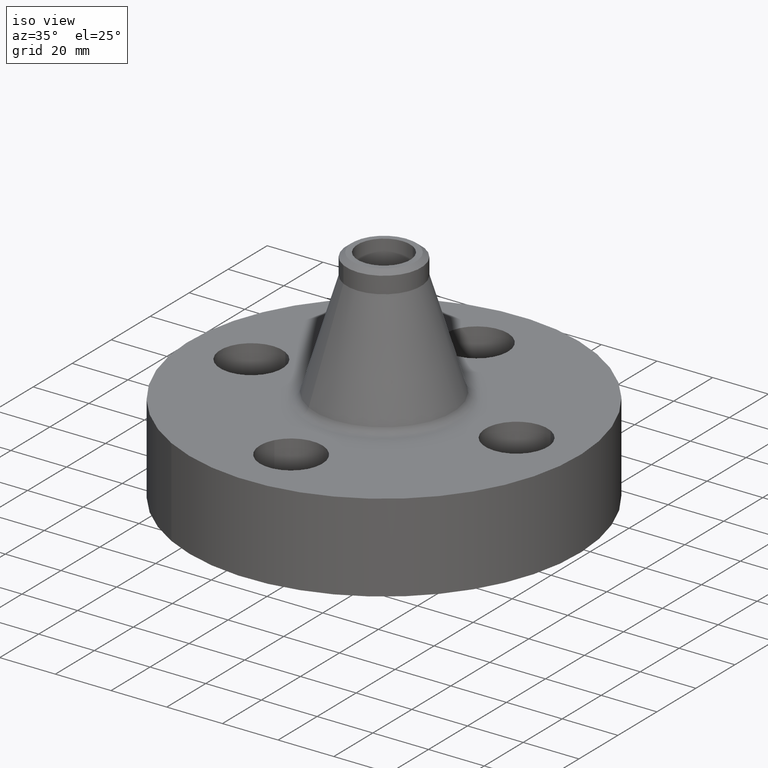
[diagram: clean part render]
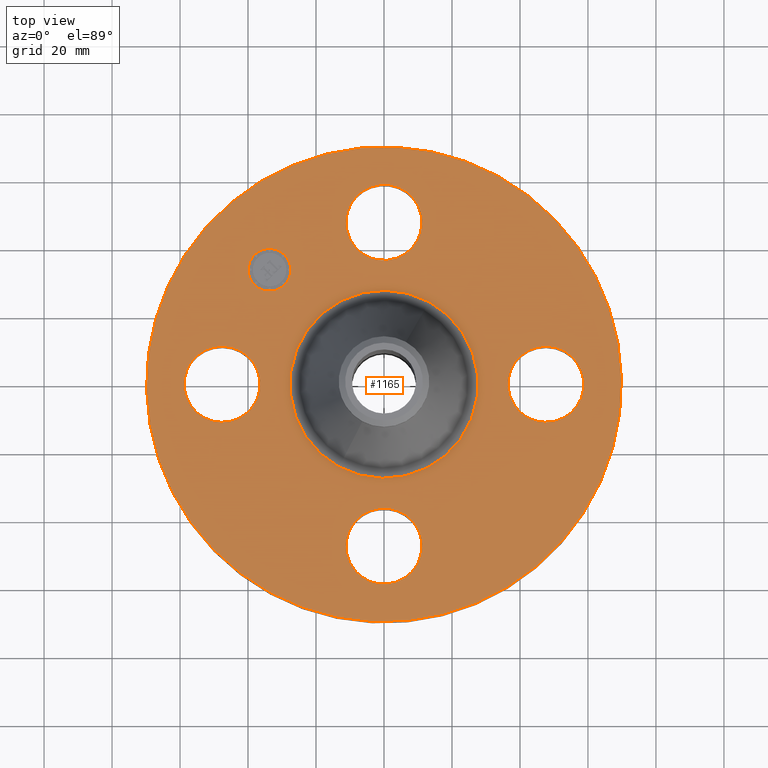
[diagram: tour spotlight — one face highlighted and labeled with its STEP entity id]
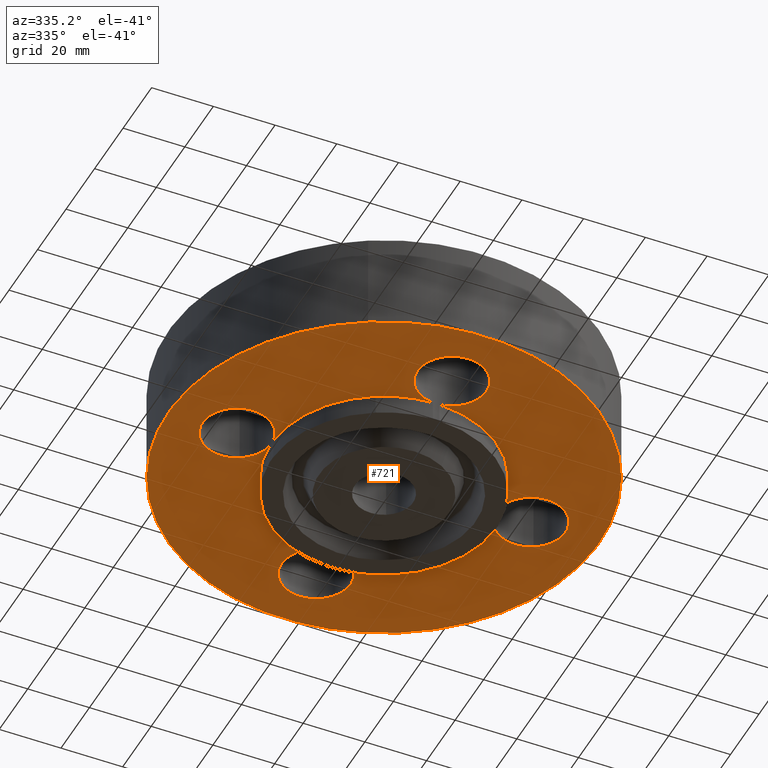
[diagram: tour spotlight — one face highlighted and labeled with its STEP entity id]
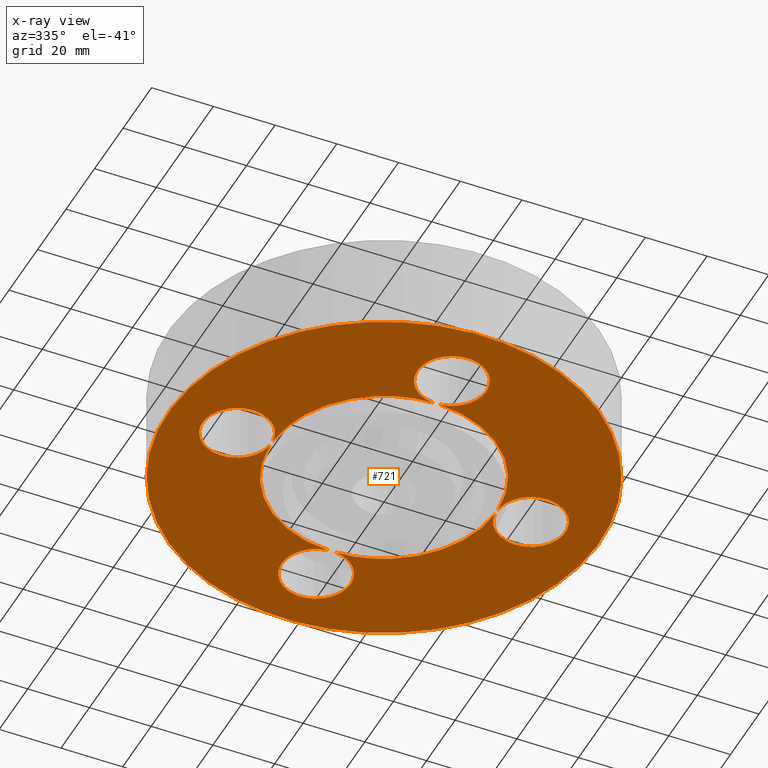
[diagram: x-ray of the same camera — body ghosted, this tour face saturated]
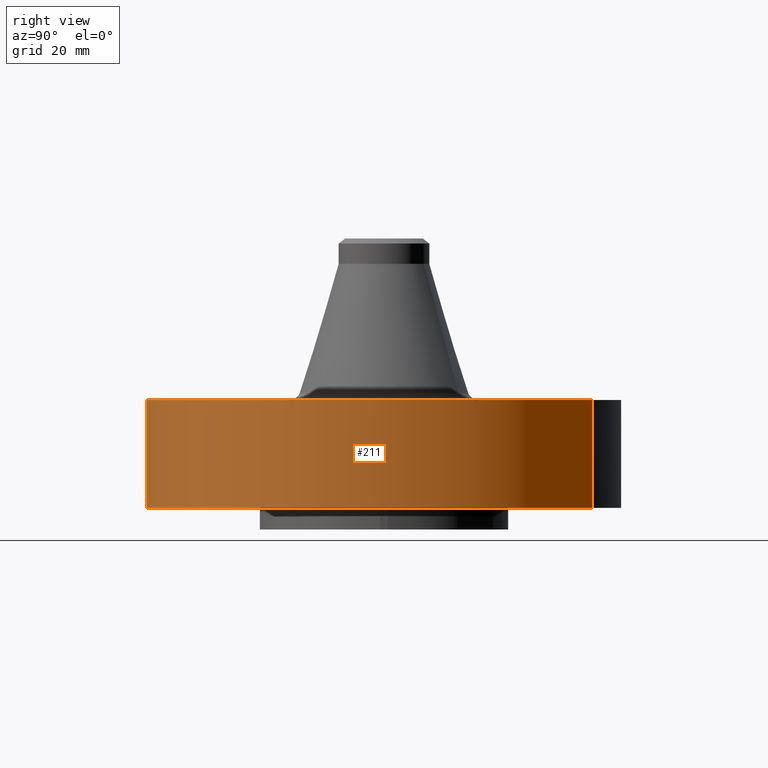
[diagram: tour spotlight — one face highlighted and labeled with its STEP entity id]
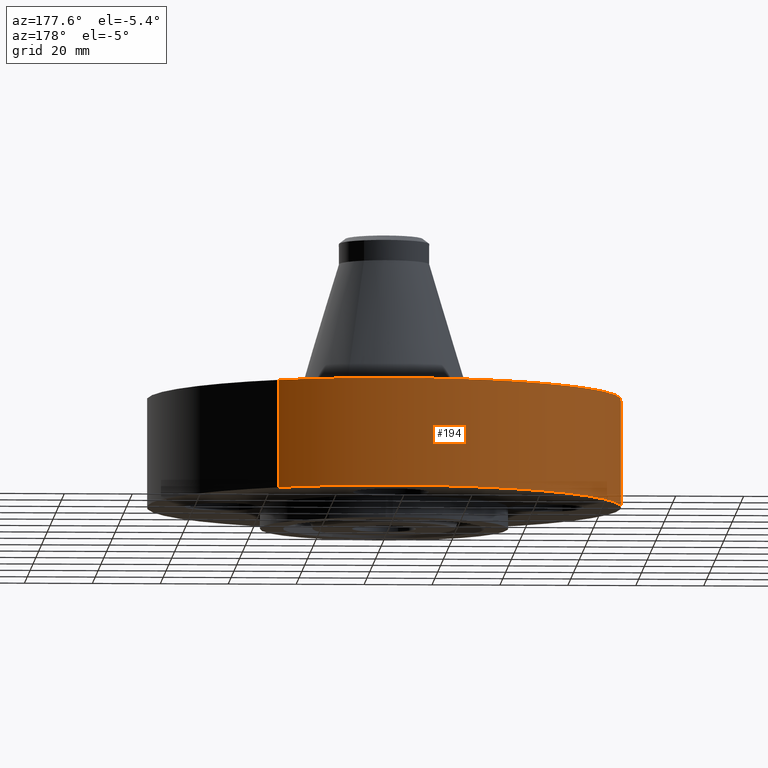
[diagram: tour spotlight — one face highlighted and labeled with its STEP entity id]
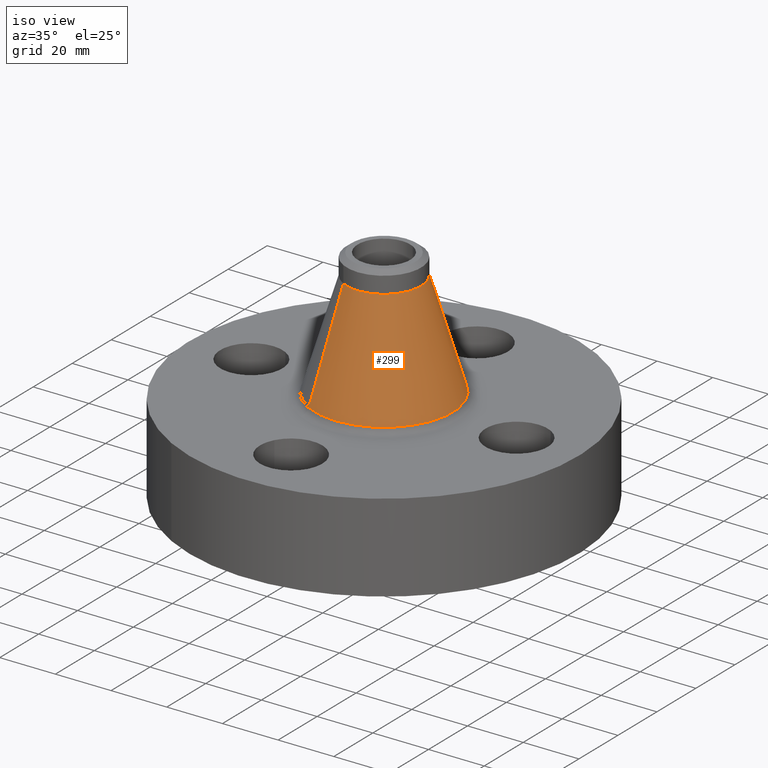
[diagram: tour spotlight — one face highlighted and labeled with its STEP entity id]
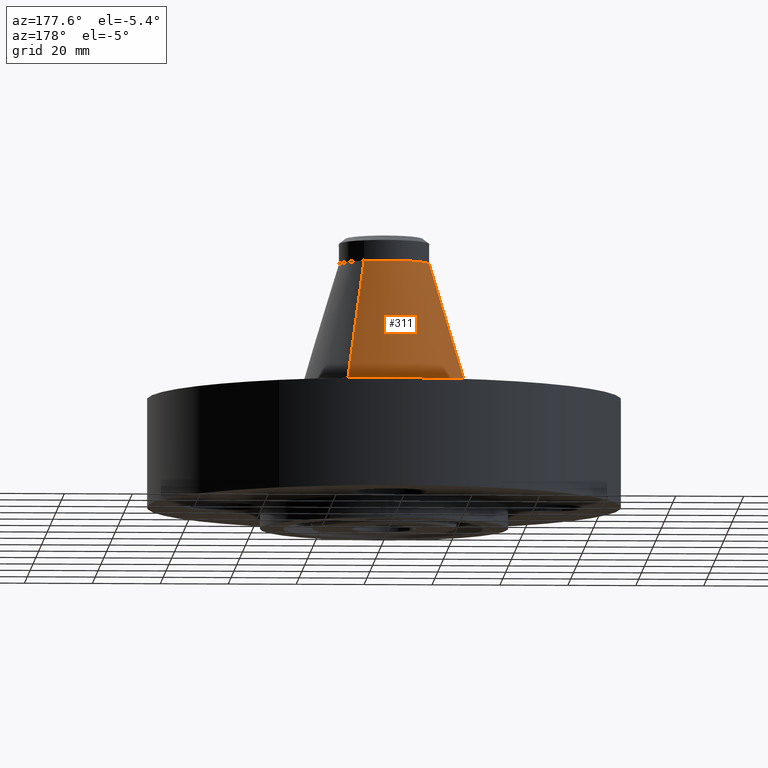
[diagram: tour spotlight — one face highlighted and labeled with its STEP entity id]
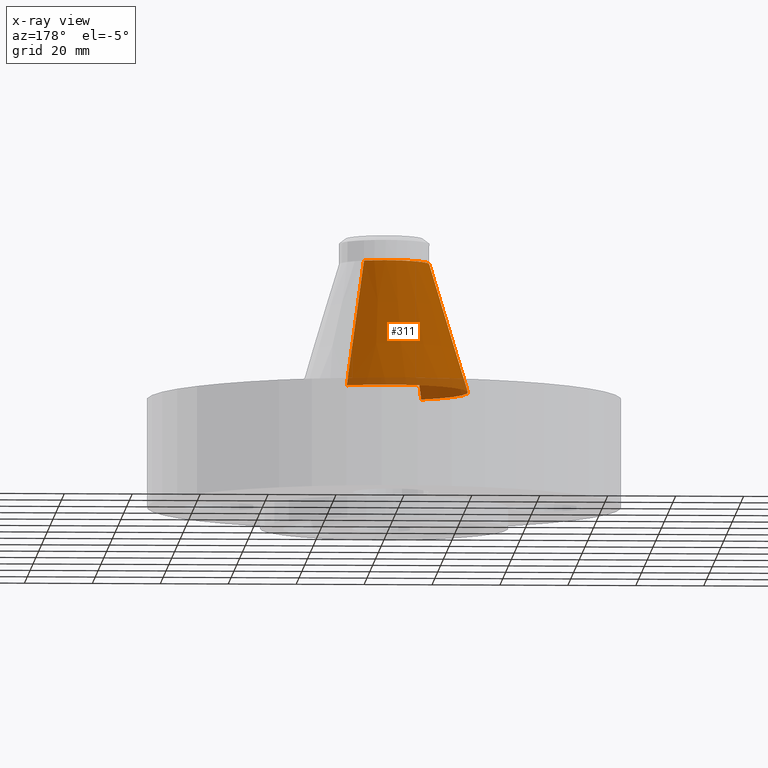
[diagram: x-ray of the same camera — body ghosted, this tour face saturated]
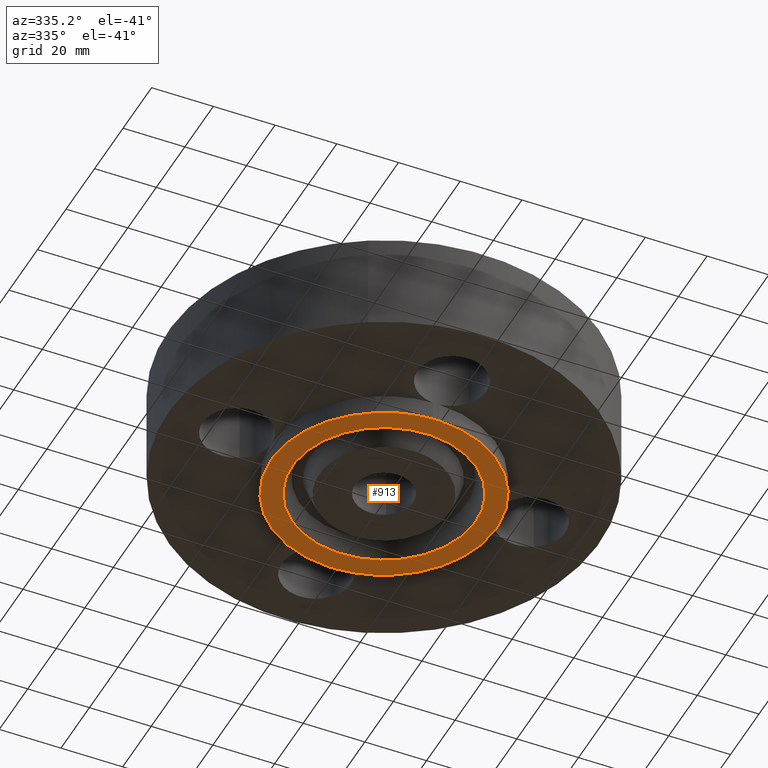
[diagram: tour spotlight — one face highlighted and labeled with its STEP entity id]
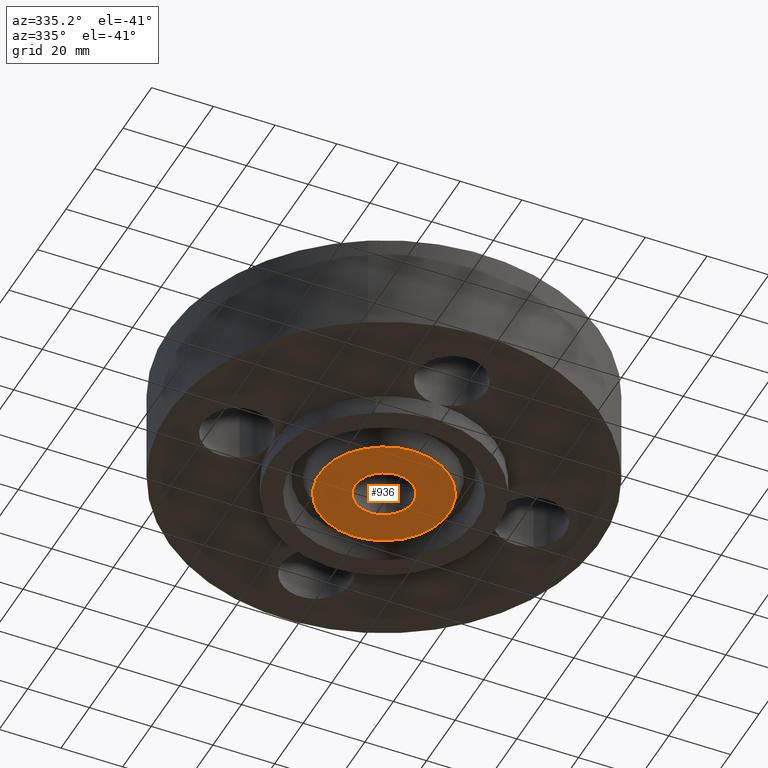
[diagram: tour spotlight — one face highlighted and labeled with its STEP entity id]
A machine part: a face-by-face anatomy tour. The part has 425 B-rep faces; the first image is the clean iso view, then the 8 largest visible faces are spotlighted one at a time (largest first), each with its STEP entity span.

Face 1 — top view, entity #1165. In plain terms, the highlighted planar face has unit normal (0, 0, -1).
Definition (entity closure, byte-faithful):
#65=AXIS2_PLACEMENT_3D('Circle Axis2P3D',#63,#64,$) ;
#110=AXIS2_PLACEMENT_3D('Circle Axis2P3D',#108,#109,$) ;
#178=AXIS2_PLACEMENT_3D('Circle Axis2P3D',#176,#177,$) ;
#202=AXIS2_PLACEMENT_3D('Circle Axis2P3D',#200,#201,$) ;
#219=AXIS2_PLACEMENT_3D('Circle Axis2P3D',#217,#218,$) ;
#254=AXIS2_PLACEMENT_3D('Circle Axis2P3D',#252,#253,$) ;
#743=AXIS2_PLACEMENT_3D('Circle Axis2P3D',#741,#742,$) ;
#760=AXIS2_PLACEMENT_3D('Circle Axis2P3D',#758,#759,$) ;
#795=AXIS2_PLACEMENT_3D('Circle Axis2P3D',#793,#794,$) ;
#812=AXIS2_PLACEMENT_3D('Circle Axis2P3D',#810,#811,$) ;
#847=AXIS2_PLACEMENT_3D('Circle Axis2P3D',#845,#846,$) ;
#864=AXIS2_PLACEMENT_3D('Circle Axis2P3D',#862,#863,$) ;
#1121=AXIS2_PLACEMENT_3D('Plane Axis2P3D',#1118,#1119,#1120) ;
#1149=AXIS2_PLACEMENT_3D('Circle Axis2P3D',#1147,#1148,$) ;
#1158=AXIS2_PLACEMENT_3D('Circle Axis2P3D',#1156,#1157,$) ;
#46=CARTESIAN_POINT('Vertex',(-0.386136327233,2.08594723699,1.25000000001)) ;
#60=CARTESIAN_POINT('Vertex',(0.386136327233,1.66405276302,1.25000000001)) ;
#63=CARTESIAN_POINT('Axis2P3D Location',(0.,1.87500000001,1.25000000001)) ;
#108=CARTESIAN_POINT('Axis2P3D Location',(0.,1.87500000001,1.25000000001)) ;
#173=CARTESIAN_POINT('Vertex',(-1.31842023117,-2.41335204521,1.25000000001)) ;
#176=CARTESIAN_POINT('Axis2P3D Location',(0.,0.,1.25000000001)) ;
#180=CARTESIAN_POINT('Vertex',(1.31842023117,2.41335204521,1.25000000001)) ;
#200=CARTESIAN_POINT('Axis2P3D Location',(0.,0.,1.25000000001)) ;
#217=CARTESIAN_POINT('Axis2P3D Location',(0.,0.,1.25000000001)) ;
#221=CARTESIAN_POINT('Vertex',(0.52217346998,0.955832125402,1.25000000001)) ;
#223=CARTESIAN_POINT('Vertex',(-0.52217346998,-0.955832125402,1.25000000001)) ;
#252=CARTESIAN_POINT('Axis2P3D Location',(0.,0.,1.25000000001)) ;
#731=CARTESIAN_POINT('Vertex',(2.08594723699,0.386136327233,1.25000000001)) ;
#738=CARTESIAN_POINT('Vertex',(1.66405276302,-0.386136327233,1.25000000001)) ;
#741=CARTESIAN_POINT('Axis2P3D Location',(1.87500000001,-1.64930597131E-016,1.25000000001)) ;
#758=CARTESIAN_POINT('Axis2P3D Location',(1.87500000001,-1.64930597131E-016,1.25000000001)) ;
#783=CARTESIAN_POINT('Vertex',(0.386136327233,-2.08594723699,1.25000000001)) ;
#790=CARTESIAN_POINT('Vertex',(-0.386136327233,-1.66405276302,1.25000000001)) ;
#793=CARTESIAN_POINT('Axis2P3D Location',(2.29621274841E-016,-1.87500000001,1.25000000001)) ;
#810=CARTESIAN_POINT('Axis2P3D Location',(2.29621274841E-016,-1.87500000001,1.25000000001)) ;
#835=CARTESIAN_POINT('Vertex',(-2.08594723699,-0.386136327233,1.25000000001)) ;
#842=CARTESIAN_POINT('Vertex',(-1.66405276302,0.386136327233,1.25000000001)) ;
#845=CARTESIAN_POINT('Axis2P3D Location',(-1.87500000001,-3.44431912262E-016,1.25000000001)) ;
#862=CARTESIAN_POINT('Axis2P3D Location',(-1.87500000001,-3.44431912262E-016,1.25000000001)) ;
#1118=CARTESIAN_POINT('Axis2P3D Location',(0.,2.75000000001,1.25000000001)) ;
#1147=CARTESIAN_POINT('Axis2P3D Location',(-1.32582521473,1.32582521473,1.25000000001)) ;
#1151=CARTESIAN_POINT('Vertex',(-1.50083414307,1.15081628639,1.25000000001)) ;
#1153=CARTESIAN_POINT('Vertex',(-1.15081628639,1.50083414307,1.25000000001)) ;
#1156=CARTESIAN_POINT('Axis2P3D Location',(-1.32582521473,1.32582521473,1.25000000001)) ;
#64=DIRECTION('Axis2P3D Direction',(0.,-0.,-0.0393700787402)) ;
#109=DIRECTION('Axis2P3D Direction',(0.,-0.,-0.0393700787402)) ;
#177=DIRECTION('Axis2P3D Direction',(0.,0.,-0.0393700787402)) ;
#201=DIRECTION('Axis2P3D Direction',(0.,0.,-0.0393700787402)) ;
#218=DIRECTION('Axis2P3D Direction',(0.,0.,-0.0393700787402)) ;
#253=DIRECTION('Axis2P3D Direction',(0.,0.,-0.0393700787402)) ;
#742=DIRECTION('Axis2P3D Direction',(0.,-0.,-0.0393700787402)) ;
#759=DIRECTION('Axis2P3D Direction',(0.,-0.,-0.0393700787402)) ;
#794=DIRECTION('Axis2P3D Direction',(-0.,0.,-0.0393700787402)) ;
#811=DIRECTION('Axis2P3D Direction',(-0.,0.,-0.0393700787402)) ;
#846=DIRECTION('Axis2P3D Direction',(0.,0.,-0.0393700787402)) ;
#863=DIRECTION('Axis2P3D Direction',(0.,0.,-0.0393700787402)) ;
#1119=DIRECTION('Axis2P3D Direction',(0.,0.,-0.0393700787402)) ;
#1120=DIRECTION('Axis2P3D XDirection',(0.0393700787402,0.,0.)) ;
#1148=DIRECTION('Axis2P3D Direction',(0.,0.,-0.0393700787402)) ;
#1157=DIRECTION('Axis2P3D Direction',(0.,0.,-0.0393700787402)) ;
#1124=ORIENTED_EDGE('',*,*,#204,.F.) ;
#1125=ORIENTED_EDGE('',*,*,#182,.F.) ;
#1128=ORIENTED_EDGE('',*,*,#67,.T.) ;
#1129=ORIENTED_EDGE('',*,*,#112,.T.) ;
#1132=ORIENTED_EDGE('',*,*,#256,.T.) ;
#1133=ORIENTED_EDGE('',*,*,#225,.T.) ;
#1136=ORIENTED_EDGE('',*,*,#762,.T.) ;
#1137=ORIENTED_EDGE('',*,*,#745,.T.) ;
#1140=ORIENTED_EDGE('',*,*,#814,.T.) ;
#1141=ORIENTED_EDGE('',*,*,#797,.T.) ;
#1144=ORIENTED_EDGE('',*,*,#866,.T.) ;
#1145=ORIENTED_EDGE('',*,*,#849,.T.) ;
#1162=ORIENTED_EDGE('',*,*,#1155,.T.) ;
#1163=ORIENTED_EDGE('',*,*,#1160,.T.) ;
#1130=FACE_BOUND('',#1127,.T.) ;
#1134=FACE_BOUND('',#1131,.T.) ;
#1138=FACE_BOUND('',#1135,.T.) ;
#1142=FACE_BOUND('',#1139,.T.) ;
#1146=FACE_BOUND('',#1143,.T.) ;
#1164=FACE_BOUND('',#1161,.T.) ;
#1165=ADVANCED_FACE('PartBody',(#1126,#1130,#1134,#1138,#1142,#1146,#1164),#1122,.F.) ;
#66=CIRCLE('generated circle',#65,0.440000000002) ;
#111=CIRCLE('generated circle',#110,0.440000000002) ;
#179=CIRCLE('generated circle',#178,2.75000000001) ;
#203=CIRCLE('generated circle',#202,2.75000000001) ;
#220=CIRCLE('generated circle',#219,1.08916490244) ;
#255=CIRCLE('generated circle',#254,1.08916490244) ;
#744=CIRCLE('generated circle',#743,0.440000000002) ;
#761=CIRCLE('generated circle',#760,0.440000000002) ;
#796=CIRCLE('generated circle',#795,0.440000000002) ;
#813=CIRCLE('generated circle',#812,0.440000000002) ;
#848=CIRCLE('generated circle',#847,0.440000000002) ;
#865=CIRCLE('generated circle',#864,0.440000000002) ;
#1150=CIRCLE('generated circle',#1149,0.247500000001) ;
#1159=CIRCLE('generated circle',#1158,0.247500000001) ;
#67=EDGE_CURVE('',#47,#61,#66,.T.) ;
#112=EDGE_CURVE('',#61,#47,#111,.T.) ;
#182=EDGE_CURVE('',#174,#181,#179,.T.) ;
#204=EDGE_CURVE('',#181,#174,#203,.T.) ;
#225=EDGE_CURVE('',#222,#224,#220,.T.) ;
#256=EDGE_CURVE('',#224,#222,#255,.T.) ;
#745=EDGE_CURVE('',#732,#739,#744,.T.) ;
#762=EDGE_CURVE('',#739,#732,#761,.T.) ;
#797=EDGE_CURVE('',#784,#791,#796,.T.) ;
#814=EDGE_CURVE('',#791,#784,#813,.T.) ;
#849=EDGE_CURVE('',#836,#843,#848,.T.) ;
#866=EDGE_CURVE('',#843,#836,#865,.T.) ;
#1155=EDGE_CURVE('',#1152,#1154,#1150,.T.) ;
#1160=EDGE_CURVE('',#1154,#1152,#1159,.T.) ;
#1123=EDGE_LOOP('',(#1124,#1125)) ;
#1127=EDGE_LOOP('',(#1128,#1129)) ;
#1131=EDGE_LOOP('',(#1132,#1133)) ;
#1135=EDGE_LOOP('',(#1136,#1137)) ;
#1139=EDGE_LOOP('',(#1140,#1141)) ;
#1143=EDGE_LOOP('',(#1144,#1145)) ;
#1161=EDGE_LOOP('',(#1162,#1163)) ;
#1126=FACE_OUTER_BOUND('',#1123,.T.) ;
#1122=PLANE('',#1121) ;
#47=VERTEX_POINT('',#46) ;
#61=VERTEX_POINT('',#60) ;
#174=VERTEX_POINT('',#173) ;
#181=VERTEX_POINT('',#180) ;
#222=VERTEX_POINT('',#221) ;
#224=VERTEX_POINT('',#223) ;
#732=VERTEX_POINT('',#731) ;
#739=VERTEX_POINT('',#738) ;
#784=VERTEX_POINT('',#783) ;
#791=VERTEX_POINT('',#790) ;
#836=VERTEX_POINT('',#835) ;
#843=VERTEX_POINT('',#842) ;
#1152=VERTEX_POINT('',#1151) ;
#1154=VERTEX_POINT('',#1153) ;

Face 2 — auxiliary view, entity #721. An x-ray twin of the same camera follows (body ghosted, this face saturated) — the face is partly hidden behind the body. In plain terms, the highlighted planar face has unit normal (0, 0, -1).
Definition (entity closure, byte-faithful):
#51=AXIS2_PLACEMENT_3D('Circle Axis2P3D',#49,#50,$) ;
#77=AXIS2_PLACEMENT_3D('Circle Axis2P3D',#75,#76,$) ;
#105=AXIS2_PLACEMENT_3D('Circle Axis2P3D',#103,#104,$) ;
#131=AXIS2_PLACEMENT_3D('Circle Axis2P3D',#129,#130,$) ;
#162=AXIS2_PLACEMENT_3D('Circle Axis2P3D',#160,#161,$) ;
#197=AXIS2_PLACEMENT_3D('Circle Axis2P3D',#195,#196,$) ;
#505=AXIS2_PLACEMENT_3D('Circle Axis2P3D',#503,#504,$) ;
#524=AXIS2_PLACEMENT_3D('Circle Axis2P3D',#522,#523,$) ;
#566=AXIS2_PLACEMENT_3D('Circle Axis2P3D',#564,#565,$) ;
#585=AXIS2_PLACEMENT_3D('Circle Axis2P3D',#583,#584,$) ;
#618=AXIS2_PLACEMENT_3D('Circle Axis2P3D',#616,#617,$) ;
#638=AXIS2_PLACEMENT_3D('Plane Axis2P3D',#635,#636,#637) ;
#646=AXIS2_PLACEMENT_3D('Circle Axis2P3D',#644,#645,$) ;
#653=AXIS2_PLACEMENT_3D('Circle Axis2P3D',#651,#652,$) ;
#660=AXIS2_PLACEMENT_3D('Circle Axis2P3D',#658,#659,$) ;
#665=AXIS2_PLACEMENT_3D('Circle Axis2P3D',#663,#664,$) ;
#672=AXIS2_PLACEMENT_3D('Circle Axis2P3D',#670,#671,$) ;
#679=AXIS2_PLACEMENT_3D('Circle Axis2P3D',#677,#678,$) ;
#684=AXIS2_PLACEMENT_3D('Circle Axis2P3D',#682,#683,$) ;
#691=AXIS2_PLACEMENT_3D('Circle Axis2P3D',#689,#690,$) ;
#698=AXIS2_PLACEMENT_3D('Circle Axis2P3D',#696,#697,$) ;
#44=CARTESIAN_POINT('Vertex',(-0.386136327233,2.08594723699,0.)) ;
#49=CARTESIAN_POINT('Axis2P3D Location',(0.,1.87500000001,0.)) ;
#53=CARTESIAN_POINT('Vertex',(0.386136327233,1.66405276302,0.)) ;
#75=CARTESIAN_POINT('Axis2P3D Location',(0.,1.87500000001,0.)) ;
#79=CARTESIAN_POINT('Vertex',(0.0410064967415,1.43691500001,0.)) ;
#100=CARTESIAN_POINT('Vertex',(-0.0410064967415,1.43691500001,0.)) ;
#103=CARTESIAN_POINT('Axis2P3D Location',(0.,1.87500000001,0.)) ;
#129=CARTESIAN_POINT('Axis2P3D Location',(0.,0.,0.)) ;
#133=CARTESIAN_POINT('Vertex',(0.689174211746,1.26152493272,0.)) ;
#160=CARTESIAN_POINT('Axis2P3D Location',(0.,0.,5.59482469102E-016)) ;
#164=CARTESIAN_POINT('Vertex',(-1.31842023117,-2.41335204521,5.59482469102E-016)) ;
#166=CARTESIAN_POINT('Vertex',(1.31842023117,2.41335204521,5.59482469102E-016)) ;
#195=CARTESIAN_POINT('Axis2P3D Location',(0.,0.,5.59482469102E-016)) ;
#500=CARTESIAN_POINT('Vertex',(-0.689174211746,-1.26152493272,0.)) ;
#503=CARTESIAN_POINT('Axis2P3D Location',(0.,0.,0.)) ;
#507=CARTESIAN_POINT('Vertex',(-1.43691500001,-0.0410064967415,0.)) ;
#522=CARTESIAN_POINT('Axis2P3D Location',(0.,0.,0.)) ;
#526=CARTESIAN_POINT('Vertex',(-1.43691500001,0.0410064967415,0.)) ;
#561=CARTESIAN_POINT('Vertex',(1.43691500001,-0.0410064967415,0.)) ;
#564=CARTESIAN_POINT('Axis2P3D Location',(0.,0.,0.)) ;
#568=CARTESIAN_POINT('Vertex',(0.0410064967415,-1.43691500001,0.)) ;
#583=CARTESIAN_POINT('Axis2P3D Location',(0.,0.,0.)) ;
#587=CARTESIAN_POINT('Vertex',(-0.0410064967415,-1.43691500001,0.)) ;
#616=CARTESIAN_POINT('Axis2P3D Location',(0.,0.,0.)) ;
#620=CARTESIAN_POINT('Vertex',(1.43691500001,0.0410064967415,0.)) ;
#635=CARTESIAN_POINT('Axis2P3D Location',(0.,1.43750000001,0.)) ;
#644=CARTESIAN_POINT('Axis2P3D Location',(1.87500000001,0.,0.)) ;
#648=CARTESIAN_POINT('Vertex',(1.66405276302,-0.386136327233,0.)) ;
#651=CARTESIAN_POINT('Axis2P3D Location',(1.87500000001,-2.79741234551E-016,0.)) ;
#655=CARTESIAN_POINT('Vertex',(2.08594723699,0.386136327233,0.)) ;
#658=CARTESIAN_POINT('Axis2P3D Location',(1.87500000001,0.,0.)) ;
#663=CARTESIAN_POINT('Axis2P3D Location',(-1.87500000001,-2.79741234551E-016,0.)) ;
#667=CARTESIAN_POINT('Vertex',(-1.66405276302,0.386136327233,0.)) ;
#670=CARTESIAN_POINT('Axis2P3D Location',(-1.87500000001,-2.79741234551E-016,0.)) ;
#674=CARTESIAN_POINT('Vertex',(-2.08594723699,-0.386136327233,0.)) ;
#677=CARTESIAN_POINT('Axis2P3D Location',(-1.87500000001,-2.79741234551E-016,0.)) ;
#682=CARTESIAN_POINT('Axis2P3D Location',(4.37095678986E-016,-1.87500000001,0.)) ;
#686=CARTESIAN_POINT('Vertex',(-0.386136327233,-1.66405276302,0.)) ;
#689=CARTESIAN_POINT('Axis2P3D Location',(2.27289753073E-016,-1.87500000001,0.)) ;
#693=CARTESIAN_POINT('Vertex',(0.386136327233,-2.08594723699,0.)) ;
#696=CARTESIAN_POINT('Axis2P3D Location',(4.37095678986E-016,-1.87500000001,0.)) ;
#50=DIRECTION('Axis2P3D Direction',(0.,-0.,-0.0393700787402)) ;
#76=DIRECTION('Axis2P3D Direction',(0.,-0.,-0.0393700787402)) ;
#104=DIRECTION('Axis2P3D Direction',(0.,-0.,-0.0393700787402)) ;
#130=DIRECTION('Axis2P3D Direction',(0.,0.,-0.0393700787402)) ;
#161=DIRECTION('Axis2P3D Direction',(0.,0.,-0.0393700787402)) ;
#196=DIRECTION('Axis2P3D Direction',(0.,0.,-0.0393700787402)) ;
#504=DIRECTION('Axis2P3D Direction',(0.,0.,-0.0393700787402)) ;
#523=DIRECTION('Axis2P3D Direction',(0.,0.,-0.0393700787402)) ;
#565=DIRECTION('Axis2P3D Direction',(0.,0.,-0.0393700787402)) ;
#584=DIRECTION('Axis2P3D Direction',(0.,0.,-0.0393700787402)) ;
#617=DIRECTION('Axis2P3D Direction',(0.,0.,-0.0393700787402)) ;
#636=DIRECTION('Axis2P3D Direction',(0.,0.,-0.0393700787402)) ;
#637=DIRECTION('Axis2P3D XDirection',(0.0393700787402,0.,0.)) ;
#645=DIRECTION('Axis2P3D Direction',(0.,0.,-0.0393700787402)) ;
#652=DIRECTION('Axis2P3D Direction',(0.,0.,-0.0393700787402)) ;
#659=DIRECTION('Axis2P3D Direction',(0.,0.,-0.0393700787402)) ;
#664=DIRECTION('Axis2P3D Direction',(0.,0.,-0.0393700787402)) ;
#671=DIRECTION('Axis2P3D Direction',(0.,0.,-0.0393700787402)) ;
#678=DIRECTION('Axis2P3D Direction',(0.,0.,-0.0393700787402)) ;
#683=DIRECTION('Axis2P3D Direction',(0.,0.,-0.0393700787402)) ;
#690=DIRECTION('Axis2P3D Direction',(0.,0.,-0.0393700787402)) ;
#697=DIRECTION('Axis2P3D Direction',(0.,0.,-0.0393700787402)) ;
#641=ORIENTED_EDGE('',*,*,#168,.T.) ;
#642=ORIENTED_EDGE('',*,*,#199,.T.) ;
#702=ORIENTED_EDGE('',*,*,#570,.F.) ;
#703=ORIENTED_EDGE('',*,*,#650,.F.) ;
#704=ORIENTED_EDGE('',*,*,#657,.F.) ;
#705=ORIENTED_EDGE('',*,*,#662,.F.) ;
#706=ORIENTED_EDGE('',*,*,#622,.F.) ;
#707=ORIENTED_EDGE('',*,*,#135,.F.) ;
#708=ORIENTED_EDGE('',*,*,#81,.F.) ;
#709=ORIENTED_EDGE('',*,*,#55,.F.) ;
#710=ORIENTED_EDGE('',*,*,#107,.F.) ;
#711=ORIENTED_EDGE('',*,*,#528,.F.) ;
#712=ORIENTED_EDGE('',*,*,#669,.F.) ;
#713=ORIENTED_EDGE('',*,*,#676,.F.) ;
#714=ORIENTED_EDGE('',*,*,#681,.F.) ;
#715=ORIENTED_EDGE('',*,*,#509,.F.) ;
#716=ORIENTED_EDGE('',*,*,#589,.F.) ;
#717=ORIENTED_EDGE('',*,*,#688,.F.) ;
#718=ORIENTED_EDGE('',*,*,#695,.F.) ;
#719=ORIENTED_EDGE('',*,*,#700,.F.) ;
#720=FACE_BOUND('',#701,.T.) ;
#721=ADVANCED_FACE('PartBody',(#643,#720),#639,.T.) ;
#52=CIRCLE('generated circle',#51,0.440000000002) ;
#78=CIRCLE('generated circle',#77,0.440000000002) ;
#106=CIRCLE('generated circle',#105,0.440000000002) ;
#132=CIRCLE('generated circle',#131,1.43750000001) ;
#163=CIRCLE('generated circle',#162,2.75000000001) ;
#198=CIRCLE('generated circle',#197,2.75000000001) ;
#506=CIRCLE('generated circle',#505,1.43750000001) ;
#525=CIRCLE('generated circle',#524,1.43750000001) ;
#567=CIRCLE('generated circle',#566,1.43750000001) ;
#586=CIRCLE('generated circle',#585,1.43750000001) ;
#619=CIRCLE('generated circle',#618,1.43750000001) ;
#647=CIRCLE('generated circle',#646,0.440000000002) ;
#654=CIRCLE('generated circle',#653,0.440000000002) ;
#661=CIRCLE('generated circle',#660,0.440000000002) ;
#666=CIRCLE('generated circle',#665,0.440000000002) ;
#673=CIRCLE('generated circle',#672,0.440000000002) ;
#680=CIRCLE('generated circle',#679,0.440000000002) ;
#685=CIRCLE('generated circle',#684,0.440000000002) ;
#692=CIRCLE('generated circle',#691,0.440000000002) ;
#699=CIRCLE('generated circle',#698,0.440000000002) ;
#55=EDGE_CURVE('',#45,#54,#52,.T.) ;
#81=EDGE_CURVE('',#54,#80,#78,.T.) ;
#107=EDGE_CURVE('',#101,#45,#106,.T.) ;
#135=EDGE_CURVE('',#80,#134,#132,.T.) ;
#168=EDGE_CURVE('',#165,#167,#163,.T.) ;
#199=EDGE_CURVE('',#167,#165,#198,.T.) ;
#509=EDGE_CURVE('',#501,#508,#506,.T.) ;
#528=EDGE_CURVE('',#527,#101,#525,.T.) ;
#570=EDGE_CURVE('',#562,#569,#567,.T.) ;
#589=EDGE_CURVE('',#588,#501,#586,.T.) ;
#622=EDGE_CURVE('',#134,#621,#619,.T.) ;
#650=EDGE_CURVE('',#649,#562,#647,.T.) ;
#657=EDGE_CURVE('',#656,#649,#654,.T.) ;
#662=EDGE_CURVE('',#621,#656,#661,.T.) ;
#669=EDGE_CURVE('',#668,#527,#666,.T.) ;
#676=EDGE_CURVE('',#675,#668,#673,.T.) ;
#681=EDGE_CURVE('',#508,#675,#680,.T.) ;
#688=EDGE_CURVE('',#687,#588,#685,.T.) ;
#695=EDGE_CURVE('',#694,#687,#692,.T.) ;
#700=EDGE_CURVE('',#569,#694,#699,.T.) ;
#640=EDGE_LOOP('',(#641,#642)) ;
#701=EDGE_LOOP('',(#702,#703,#704,#705,#706,#707,#708,#709,#710,#711,#712,#713,#714,#715,#716,#717,#718,#719)) ;
#643=FACE_OUTER_BOUND('',#640,.T.) ;
#639=PLANE('',#638) ;
#45=VERTEX_POINT('',#44) ;
#54=VERTEX_POINT('',#53) ;
#80=VERTEX_POINT('',#79) ;
#101=VERTEX_POINT('',#100) ;
#134=VERTEX_POINT('',#133) ;
#165=VERTEX_POINT('',#164) ;
#167=VERTEX_POINT('',#166) ;
#501=VERTEX_POINT('',#500) ;
#508=VERTEX_POINT('',#507) ;
#527=VERTEX_POINT('',#526) ;
#562=VERTEX_POINT('',#561) ;
#569=VERTEX_POINT('',#568) ;
#588=VERTEX_POINT('',#587) ;
#621=VERTEX_POINT('',#620) ;
#649=VERTEX_POINT('',#648) ;
#656=VERTEX_POINT('',#655) ;
#668=VERTEX_POINT('',#667) ;
#675=VERTEX_POINT('',#674) ;
#687=VERTEX_POINT('',#686) ;
#694=VERTEX_POINT('',#693) ;

Face 3 — right view, entity #211. In plain terms, the highlighted cylindrical surface (partial cylindrical patch) has radius 69.85 mm, axis along (0, 0, -1).
Definition (entity closure, byte-faithful):
#158=AXIS2_PLACEMENT_3D('Cylinder Axis2P3D',#155,#156,#157) ;
#197=AXIS2_PLACEMENT_3D('Circle Axis2P3D',#195,#196,$) ;
#202=AXIS2_PLACEMENT_3D('Circle Axis2P3D',#200,#201,$) ;
#155=CARTESIAN_POINT('Axis2P3D Location',(0.,0.,1.43500000001)) ;
#164=CARTESIAN_POINT('Vertex',(-1.31842023117,-2.41335204521,5.59482469102E-016)) ;
#166=CARTESIAN_POINT('Vertex',(1.31842023117,2.41335204521,5.59482469102E-016)) ;
#169=CARTESIAN_POINT('Line Origine',(-1.31842023117,-2.41335204521,0.625000000003)) ;
#173=CARTESIAN_POINT('Vertex',(-1.31842023117,-2.41335204521,1.25000000001)) ;
#180=CARTESIAN_POINT('Vertex',(1.31842023117,2.41335204521,1.25000000001)) ;
#183=CARTESIAN_POINT('Line Origine',(1.31842023117,2.41335204521,0.625000000003)) ;
#195=CARTESIAN_POINT('Axis2P3D Location',(0.,0.,5.59482469102E-016)) ;
#200=CARTESIAN_POINT('Axis2P3D Location',(0.,0.,1.25000000001)) ;
#156=DIRECTION('Axis2P3D Direction',(0.,0.,-0.0393700787402)) ;
#157=DIRECTION('Axis2P3D XDirection',(0.0188750212049,0.0345504945626,0.)) ;
#170=DIRECTION('Vector Direction',(0.,0.,-0.0393700787402)) ;
#184=DIRECTION('Vector Direction',(0.,0.,-0.0393700787402)) ;
#196=DIRECTION('Axis2P3D Direction',(0.,0.,-0.0393700787402)) ;
#201=DIRECTION('Axis2P3D Direction',(0.,0.,-0.0393700787402)) ;
#171=VECTOR('Line Direction',#170,0.0393700787402) ;
#185=VECTOR('Line Direction',#184,0.0393700787402) ;
#206=ORIENTED_EDGE('',*,*,#199,.F.) ;
#207=ORIENTED_EDGE('',*,*,#187,.T.) ;
#208=ORIENTED_EDGE('',*,*,#204,.T.) ;
#209=ORIENTED_EDGE('',*,*,#175,.F.) ;
#211=ADVANCED_FACE('PartBody',(#210),#159,.T.) ;
#198=CIRCLE('generated circle',#197,2.75000000001) ;
#203=CIRCLE('generated circle',#202,2.75000000001) ;
#159=CYLINDRICAL_SURFACE('generated cylinder',#158,2.75000000001) ;
#175=EDGE_CURVE('',#165,#174,#172,.F.) ;
#187=EDGE_CURVE('',#167,#181,#186,.F.) ;
#199=EDGE_CURVE('',#167,#165,#198,.T.) ;
#204=EDGE_CURVE('',#181,#174,#203,.T.) ;
#205=EDGE_LOOP('',(#206,#207,#208,#209)) ;
#210=FACE_OUTER_BOUND('',#205,.T.) ;
#172=LINE('Line',#169,#171) ;
#186=LINE('Line',#183,#185) ;
#165=VERTEX_POINT('',#164) ;
#167=VERTEX_POINT('',#166) ;
#174=VERTEX_POINT('',#173) ;
#181=VERTEX_POINT('',#180) ;

Face 4 — auxiliary view, entity #194. In plain terms, the highlighted cylindrical surface (partial cylindrical patch) has radius 69.85 mm, axis along (0, 0, -1).
Definition (entity closure, byte-faithful):
#158=AXIS2_PLACEMENT_3D('Cylinder Axis2P3D',#155,#156,#157) ;
#162=AXIS2_PLACEMENT_3D('Circle Axis2P3D',#160,#161,$) ;
#178=AXIS2_PLACEMENT_3D('Circle Axis2P3D',#176,#177,$) ;
#155=CARTESIAN_POINT('Axis2P3D Location',(0.,0.,1.43500000001)) ;
#160=CARTESIAN_POINT('Axis2P3D Location',(0.,0.,5.59482469102E-016)) ;
#164=CARTESIAN_POINT('Vertex',(-1.31842023117,-2.41335204521,5.59482469102E-016)) ;
#166=CARTESIAN_POINT('Vertex',(1.31842023117,2.41335204521,5.59482469102E-016)) ;
#169=CARTESIAN_POINT('Line Origine',(-1.31842023117,-2.41335204521,0.625000000003)) ;
#173=CARTESIAN_POINT('Vertex',(-1.31842023117,-2.41335204521,1.25000000001)) ;
#176=CARTESIAN_POINT('Axis2P3D Location',(0.,0.,1.25000000001)) ;
#180=CARTESIAN_POINT('Vertex',(1.31842023117,2.41335204521,1.25000000001)) ;
#183=CARTESIAN_POINT('Line Origine',(1.31842023117,2.41335204521,0.625000000003)) ;
#156=DIRECTION('Axis2P3D Direction',(0.,0.,-0.0393700787402)) ;
#157=DIRECTION('Axis2P3D XDirection',(0.0188750212049,0.0345504945626,0.)) ;
#161=DIRECTION('Axis2P3D Direction',(0.,0.,-0.0393700787402)) ;
#170=DIRECTION('Vector Direction',(0.,0.,-0.0393700787402)) ;
#177=DIRECTION('Axis2P3D Direction',(0.,0.,-0.0393700787402)) ;
#184=DIRECTION('Vector Direction',(0.,0.,-0.0393700787402)) ;
#171=VECTOR('Line Direction',#170,0.0393700787402) ;
#185=VECTOR('Line Direction',#184,0.0393700787402) ;
#189=ORIENTED_EDGE('',*,*,#168,.F.) ;
#190=ORIENTED_EDGE('',*,*,#175,.T.) ;
#191=ORIENTED_EDGE('',*,*,#182,.T.) ;
#192=ORIENTED_EDGE('',*,*,#187,.F.) ;
#194=ADVANCED_FACE('PartBody',(#193),#159,.T.) ;
#163=CIRCLE('generated circle',#162,2.75000000001) ;
#179=CIRCLE('generated circle',#178,2.75000000001) ;
#159=CYLINDRICAL_SURFACE('generated cylinder',#158,2.75000000001) ;
#168=EDGE_CURVE('',#165,#167,#163,.T.) ;
#175=EDGE_CURVE('',#165,#174,#172,.F.) ;
#182=EDGE_CURVE('',#174,#181,#179,.T.) ;
#187=EDGE_CURVE('',#167,#181,#186,.F.) ;
#188=EDGE_LOOP('',(#189,#190,#191,#192)) ;
#193=FACE_OUTER_BOUND('',#188,.T.) ;
#172=LINE('Line',#169,#171) ;
#186=LINE('Line',#183,#185) ;
#165=VERTEX_POINT('',#164) ;
#167=VERTEX_POINT('',#166) ;
#174=VERTEX_POINT('',#173) ;
#181=VERTEX_POINT('',#180) ;

Face 5 — iso view, entity #299. In plain terms, the highlighted conical surface has half-angle 16.772 deg.
Definition (entity closure, byte-faithful):
#235=AXIS2_PLACEMENT_3D('Circle Axis2P3D',#233,#234,$) ;
#272=AXIS2_PLACEMENT_3D('Cone Axis2P3D',#269,#270,#271) ;
#283=AXIS2_PLACEMENT_3D('Circle Axis2P3D',#281,#282,$) ;
#230=CARTESIAN_POINT('Vertex',(0.467089823386,0.855002186645,1.33537175534)) ;
#233=CARTESIAN_POINT('Axis2P3D Location',(0.,0.,1.33537175534)) ;
#237=CARTESIAN_POINT('Vertex',(-0.467089823386,-0.855002186645,1.33537175534)) ;
#269=CARTESIAN_POINT('Axis2P3D Location',(0.,0.,2.82603061929)) ;
#274=CARTESIAN_POINT('Line Origine',(0.359394115577,0.65786651582,2.08070118732)) ;
#278=CARTESIAN_POINT('Vertex',(0.251698407768,0.460730844994,2.82603061929)) ;
#281=CARTESIAN_POINT('Axis2P3D Location',(0.,0.,2.82603061929)) ;
#285=CARTESIAN_POINT('Vertex',(-0.251698407768,-0.460730844994,2.82603061929)) ;
#288=CARTESIAN_POINT('Line Origine',(-0.359394115577,-0.65786651582,2.08070118732)) ;
#234=DIRECTION('Axis2P3D Direction',(0.,0.,-0.0393700787402)) ;
#270=DIRECTION('Axis2P3D Direction',(0.,0.,-0.0393700787402)) ;
#271=DIRECTION('Axis2P3D XDirection',(-0.0188750212049,-0.0345504945626,0.)) ;
#275=DIRECTION('Vector Direction',(0.00544674043576,0.00997019149101,-0.0376952437353)) ;
#282=DIRECTION('Axis2P3D Direction',(0.,0.,-0.0393700787402)) ;
#289=DIRECTION('Vector Direction',(-0.00544674043576,-0.00997019149101,-0.0376952437353)) ;
#276=VECTOR('Line Direction',#275,0.0393700787402) ;
#290=VECTOR('Line Direction',#289,0.0393700787402) ;
#294=ORIENTED_EDGE('',*,*,#239,.F.) ;
#295=ORIENTED_EDGE('',*,*,#280,.T.) ;
#296=ORIENTED_EDGE('',*,*,#287,.T.) ;
#297=ORIENTED_EDGE('',*,*,#292,.F.) ;
#299=ADVANCED_FACE('PartBody',(#298),#273,.T.) ;
#236=CIRCLE('generated circle',#235,0.974269799531) ;
#284=CIRCLE('generated circle',#283,0.525000000002) ;
#273=CONICAL_SURFACE('Cone',#272,0.525000000002,0.292731612048) ;
#239=EDGE_CURVE('',#231,#238,#236,.T.) ;
#280=EDGE_CURVE('',#231,#279,#277,.F.) ;
#287=EDGE_CURVE('',#279,#286,#284,.T.) ;
#292=EDGE_CURVE('',#238,#286,#291,.F.) ;
#293=EDGE_LOOP('',(#294,#295,#296,#297)) ;
#298=FACE_OUTER_BOUND('',#293,.T.) ;
#277=LINE('Line',#274,#276) ;
#291=LINE('Line',#288,#290) ;
#231=VERTEX_POINT('',#230) ;
#238=VERTEX_POINT('',#237) ;
#279=VERTEX_POINT('',#278) ;
#286=VERTEX_POINT('',#285) ;

Face 6 — auxiliary view, entity #311. An x-ray twin of the same camera follows (body ghosted, this face saturated) — the face is partly hidden behind the body. In plain terms, the highlighted conical surface has half-angle 16.772 deg.
Definition (entity closure, byte-faithful):
#259=AXIS2_PLACEMENT_3D('Circle Axis2P3D',#257,#258,$) ;
#272=AXIS2_PLACEMENT_3D('Cone Axis2P3D',#269,#270,#271) ;
#302=AXIS2_PLACEMENT_3D('Circle Axis2P3D',#300,#301,$) ;
#230=CARTESIAN_POINT('Vertex',(0.467089823386,0.855002186645,1.33537175534)) ;
#237=CARTESIAN_POINT('Vertex',(-0.467089823386,-0.855002186645,1.33537175534)) ;
#257=CARTESIAN_POINT('Axis2P3D Location',(0.,0.,1.33537175534)) ;
#269=CARTESIAN_POINT('Axis2P3D Location',(0.,0.,2.82603061929)) ;
#274=CARTESIAN_POINT('Line Origine',(0.359394115577,0.65786651582,2.08070118732)) ;
#278=CARTESIAN_POINT('Vertex',(0.251698407768,0.460730844994,2.82603061929)) ;
#285=CARTESIAN_POINT('Vertex',(-0.251698407768,-0.460730844994,2.82603061929)) ;
#288=CARTESIAN_POINT('Line Origine',(-0.359394115577,-0.65786651582,2.08070118732)) ;
#300=CARTESIAN_POINT('Axis2P3D Location',(0.,0.,2.82603061929)) ;
#258=DIRECTION('Axis2P3D Direction',(0.,0.,-0.0393700787402)) ;
#270=DIRECTION('Axis2P3D Direction',(0.,0.,-0.0393700787402)) ;
#271=DIRECTION('Axis2P3D XDirection',(-0.0188750212049,-0.0345504945626,0.)) ;
#275=DIRECTION('Vector Direction',(0.00544674043576,0.00997019149101,-0.0376952437353)) ;
#289=DIRECTION('Vector Direction',(-0.00544674043576,-0.00997019149101,-0.0376952437353)) ;
#301=DIRECTION('Axis2P3D Direction',(0.,0.,-0.0393700787402)) ;
#276=VECTOR('Line Direction',#275,0.0393700787402) ;
#290=VECTOR('Line Direction',#289,0.0393700787402) ;
#306=ORIENTED_EDGE('',*,*,#261,.F.) ;
#307=ORIENTED_EDGE('',*,*,#292,.T.) ;
#308=ORIENTED_EDGE('',*,*,#304,.T.) ;
#309=ORIENTED_EDGE('',*,*,#280,.F.) ;
#311=ADVANCED_FACE('PartBody',(#310),#273,.T.) ;
#260=CIRCLE('generated circle',#259,0.974269799531) ;
#303=CIRCLE('generated circle',#302,0.525000000002) ;
#273=CONICAL_SURFACE('Cone',#272,0.525000000002,0.292731612048) ;
#261=EDGE_CURVE('',#238,#231,#260,.T.) ;
#280=EDGE_CURVE('',#231,#279,#277,.F.) ;
#292=EDGE_CURVE('',#238,#286,#291,.F.) ;
#304=EDGE_CURVE('',#286,#279,#303,.T.) ;
#305=EDGE_LOOP('',(#306,#307,#308,#309)) ;
#310=FACE_OUTER_BOUND('',#305,.T.) ;
#277=LINE('Line',#274,#276) ;
#291=LINE('Line',#288,#290) ;
#231=VERTEX_POINT('',#230) ;
#238=VERTEX_POINT('',#237) ;
#279=VERTEX_POINT('',#278) ;
#286=VERTEX_POINT('',#285) ;

Face 7 — auxiliary view, entity #913. In plain terms, the highlighted planar face has unit normal (0, 0, -1).
Definition (entity closure, byte-faithful):
#91=AXIS2_PLACEMENT_3D('Circle Axis2P3D',#89,#90,$) ;
#145=AXIS2_PLACEMENT_3D('Circle Axis2P3D',#143,#144,$) ;
#489=AXIS2_PLACEMENT_3D('Circle Axis2P3D',#487,#488,$) ;
#531=AXIS2_PLACEMENT_3D('Circle Axis2P3D',#529,#530,$) ;
#550=AXIS2_PLACEMENT_3D('Circle Axis2P3D',#548,#549,$) ;
#592=AXIS2_PLACEMENT_3D('Circle Axis2P3D',#590,#591,$) ;
#611=AXIS2_PLACEMENT_3D('Circle Axis2P3D',#609,#610,$) ;
#755=AXIS2_PLACEMENT_3D('Circle Axis2P3D',#753,#754,$) ;
#807=AXIS2_PLACEMENT_3D('Circle Axis2P3D',#805,#806,$) ;
#859=AXIS2_PLACEMENT_3D('Circle Axis2P3D',#857,#858,$) ;
#881=AXIS2_PLACEMENT_3D('Plane Axis2P3D',#878,#879,#880) ;
#897=AXIS2_PLACEMENT_3D('Circle Axis2P3D',#895,#896,$) ;
#906=AXIS2_PLACEMENT_3D('Circle Axis2P3D',#904,#905,$) ;
#86=CARTESIAN_POINT('Vertex',(0.0410064967415,1.43691500001,-0.250000000001)) ;
#89=CARTESIAN_POINT('Axis2P3D Location',(0.,1.87500000001,-0.250000000001)) ;
#93=CARTESIAN_POINT('Vertex',(-0.0410064967415,1.43691500001,-0.250000000001)) ;
#140=CARTESIAN_POINT('Vertex',(0.689174211746,1.26152493272,-0.250000000001)) ;
#143=CARTESIAN_POINT('Axis2P3D Location',(0.,0.,-0.250000000001)) ;
#487=CARTESIAN_POINT('Axis2P3D Location',(0.,0.,-0.250000000001)) ;
#491=CARTESIAN_POINT('Vertex',(-0.689174211746,-1.26152493272,-0.250000000001)) ;
#493=CARTESIAN_POINT('Vertex',(-1.43691500001,-0.0410064967415,-0.250000000001)) ;
#529=CARTESIAN_POINT('Axis2P3D Location',(0.,0.,-0.250000000001)) ;
#533=CARTESIAN_POINT('Vertex',(-1.43691500001,0.0410064967415,-0.250000000001)) ;
#548=CARTESIAN_POINT('Axis2P3D Location',(0.,0.,-0.250000000001)) ;
#552=CARTESIAN_POINT('Vertex',(1.43691500001,-0.0410064967415,-0.250000000001)) ;
#554=CARTESIAN_POINT('Vertex',(0.0410064967415,-1.43691500001,-0.250000000001)) ;
#590=CARTESIAN_POINT('Axis2P3D Location',(0.,0.,-0.250000000001)) ;
#594=CARTESIAN_POINT('Vertex',(-0.0410064967415,-1.43691500001,-0.250000000001)) ;
#609=CARTESIAN_POINT('Axis2P3D Location',(0.,0.,-0.250000000001)) ;
#613=CARTESIAN_POINT('Vertex',(1.43691500001,0.0410064967415,-0.250000000001)) ;
#753=CARTESIAN_POINT('Axis2P3D Location',(1.87500000001,-1.64930597131E-016,-0.250000000001)) ;
#805=CARTESIAN_POINT('Axis2P3D Location',(2.29621274841E-016,-1.87500000001,-0.250000000001)) ;
#857=CARTESIAN_POINT('Axis2P3D Location',(-1.87500000001,-3.44431912262E-016,-0.250000000001)) ;
#878=CARTESIAN_POINT('Axis2P3D Location',(0.,0.371000000001,-0.250000000001)) ;
#895=CARTESIAN_POINT('Axis2P3D Location',(-1.04902962957E-016,2.79741234551E-016,-0.250000000001)) ;
#899=CARTESIAN_POINT('Vertex',(0.561886731246,-1.02852676254,-0.250000000001)) ;
#901=CARTESIAN_POINT('Vertex',(-0.561886731246,1.02852676254,-0.250000000001)) ;
#904=CARTESIAN_POINT('Axis2P3D Location',(-1.39870617276E-016,6.99353086378E-017,-0.250000000001)) ;
#90=DIRECTION('Axis2P3D Direction',(0.,-0.,-0.0393700787402)) ;
#144=DIRECTION('Axis2P3D Direction',(0.,0.,-0.0393700787402)) ;
#488=DIRECTION('Axis2P3D Direction',(0.,0.,-0.0393700787402)) ;
#530=DIRECTION('Axis2P3D Direction',(0.,0.,-0.0393700787402)) ;
#549=DIRECTION('Axis2P3D Direction',(0.,0.,-0.0393700787402)) ;
#591=DIRECTION('Axis2P3D Direction',(0.,0.,-0.0393700787402)) ;
#610=DIRECTION('Axis2P3D Direction',(0.,0.,-0.0393700787402)) ;
#754=DIRECTION('Axis2P3D Direction',(0.,-0.,-0.0393700787402)) ;
#806=DIRECTION('Axis2P3D Direction',(-0.,0.,-0.0393700787402)) ;
#858=DIRECTION('Axis2P3D Direction',(0.,0.,-0.0393700787402)) ;
#879=DIRECTION('Axis2P3D Direction',(0.,0.,-0.0393700787402)) ;
#880=DIRECTION('Axis2P3D XDirection',(0.0393700787402,0.,0.)) ;
#896=DIRECTION('Axis2P3D Direction',(0.,0.,-0.0393700787402)) ;
#905=DIRECTION('Axis2P3D Direction',(0.,0.,-0.0393700787402)) ;
#884=ORIENTED_EDGE('',*,*,#556,.T.) ;
#885=ORIENTED_EDGE('',*,*,#809,.F.) ;
#886=ORIENTED_EDGE('',*,*,#596,.T.) ;
#887=ORIENTED_EDGE('',*,*,#495,.T.) ;
#888=ORIENTED_EDGE('',*,*,#861,.F.) ;
#889=ORIENTED_EDGE('',*,*,#535,.T.) ;
#890=ORIENTED_EDGE('',*,*,#95,.F.) ;
#891=ORIENTED_EDGE('',*,*,#147,.T.) ;
#892=ORIENTED_EDGE('',*,*,#615,.T.) ;
#893=ORIENTED_EDGE('',*,*,#757,.F.) ;
#910=ORIENTED_EDGE('',*,*,#903,.F.) ;
#911=ORIENTED_EDGE('',*,*,#908,.F.) ;
#912=FACE_BOUND('',#909,.T.) ;
#913=ADVANCED_FACE('PartBody',(#894,#912),#882,.T.) ;
#92=CIRCLE('generated circle',#91,0.440000000002) ;
#146=CIRCLE('generated circle',#145,1.43750000001) ;
#490=CIRCLE('generated circle',#489,1.43750000001) ;
#532=CIRCLE('generated circle',#531,1.43750000001) ;
#551=CIRCLE('generated circle',#550,1.43750000001) ;
#593=CIRCLE('generated circle',#592,1.43750000001) ;
#612=CIRCLE('generated circle',#611,1.43750000001) ;
#756=CIRCLE('generated circle',#755,0.440000000002) ;
#808=CIRCLE('generated circle',#807,0.440000000002) ;
#860=CIRCLE('generated circle',#859,0.440000000002) ;
#898=CIRCLE('generated circle',#897,1.172) ;
#907=CIRCLE('generated circle',#906,1.172) ;
#95=EDGE_CURVE('',#87,#94,#92,.T.) ;
#147=EDGE_CURVE('',#87,#141,#146,.T.) ;
#495=EDGE_CURVE('',#492,#494,#490,.T.) ;
#535=EDGE_CURVE('',#534,#94,#532,.T.) ;
#556=EDGE_CURVE('',#553,#555,#551,.T.) ;
#596=EDGE_CURVE('',#595,#492,#593,.T.) ;
#615=EDGE_CURVE('',#141,#614,#612,.T.) ;
#757=EDGE_CURVE('',#553,#614,#756,.T.) ;
#809=EDGE_CURVE('',#595,#555,#808,.T.) ;
#861=EDGE_CURVE('',#534,#494,#860,.T.) ;
#903=EDGE_CURVE('',#900,#902,#898,.T.) ;
#908=EDGE_CURVE('',#902,#900,#907,.T.) ;
#883=EDGE_LOOP('',(#884,#885,#886,#887,#888,#889,#890,#891,#892,#893)) ;
#909=EDGE_LOOP('',(#910,#911)) ;
#894=FACE_OUTER_BOUND('',#883,.T.) ;
#882=PLANE('',#881) ;
#87=VERTEX_POINT('',#86) ;
#94=VERTEX_POINT('',#93) ;
#141=VERTEX_POINT('',#140) ;
#492=VERTEX_POINT('',#491) ;
#494=VERTEX_POINT('',#493) ;
#534=VERTEX_POINT('',#533) ;
#553=VERTEX_POINT('',#552) ;
#555=VERTEX_POINT('',#554) ;
#595=VERTEX_POINT('',#594) ;
#614=VERTEX_POINT('',#613) ;
#900=VERTEX_POINT('',#899) ;
#902=VERTEX_POINT('',#901) ;

Face 8 — auxiliary view, entity #936. In plain terms, the highlighted planar face has unit normal (0, 0, -1).
Definition (entity closure, byte-faithful):
#458=AXIS2_PLACEMENT_3D('Circle Axis2P3D',#456,#457,$) ;
#477=AXIS2_PLACEMENT_3D('Circle Axis2P3D',#475,#476,$) ;
#881=AXIS2_PLACEMENT_3D('Plane Axis2P3D',#878,#879,#880) ;
#916=AXIS2_PLACEMENT_3D('Circle Axis2P3D',#914,#915,$) ;
#925=AXIS2_PLACEMENT_3D('Circle Axis2P3D',#923,#924,$) ;
#453=CARTESIAN_POINT('Vertex',(-0.177866874823,-0.325583130463,-0.250000000001)) ;
#456=CARTESIAN_POINT('Axis2P3D Location',(0.,0.,-0.250000000001)) ;
#460=CARTESIAN_POINT('Vertex',(0.177866874823,0.325583130463,-0.250000000001)) ;
#475=CARTESIAN_POINT('Axis2P3D Location',(0.,0.,-0.250000000001)) ;
#878=CARTESIAN_POINT('Axis2P3D Location',(0.,0.371000000001,-0.250000000001)) ;
#914=CARTESIAN_POINT('Axis2P3D Location',(-1.39870617276E-016,0.,-0.250000000001)) ;
#918=CARTESIAN_POINT('Vertex',(-0.396964345966,0.726638361248,-0.250000000001)) ;
#920=CARTESIAN_POINT('Vertex',(0.396964345966,-0.726638361248,-0.250000000001)) ;
#923=CARTESIAN_POINT('Axis2P3D Location',(-2.09805925913E-016,6.99353086378E-017,-0.250000000001)) ;
#457=DIRECTION('Axis2P3D Direction',(0.,0.,-0.0393700787402)) ;
#476=DIRECTION('Axis2P3D Direction',(0.,0.,-0.0393700787402)) ;
#879=DIRECTION('Axis2P3D Direction',(0.,0.,-0.0393700787402)) ;
#880=DIRECTION('Axis2P3D XDirection',(0.0393700787402,0.,0.)) ;
#915=DIRECTION('Axis2P3D Direction',(0.,0.,-0.0393700787402)) ;
#924=DIRECTION('Axis2P3D Direction',(0.,0.,-0.0393700787402)) ;
#929=ORIENTED_EDGE('',*,*,#922,.T.) ;
#930=ORIENTED_EDGE('',*,*,#927,.T.) ;
#933=ORIENTED_EDGE('',*,*,#479,.F.) ;
#934=ORIENTED_EDGE('',*,*,#462,.F.) ;
#935=FACE_BOUND('',#932,.T.) ;
#936=ADVANCED_FACE('PartBody',(#931,#935),#882,.T.) ;
#459=CIRCLE('generated circle',#458,0.371000000001) ;
#478=CIRCLE('generated circle',#477,0.371000000001) ;
#917=CIRCLE('generated circle',#916,0.828000000003) ;
#926=CIRCLE('generated circle',#925,0.828000000003) ;
#462=EDGE_CURVE('',#454,#461,#459,.T.) ;
#479=EDGE_CURVE('',#461,#454,#478,.T.) ;
#922=EDGE_CURVE('',#919,#921,#917,.T.) ;
#927=EDGE_CURVE('',#921,#919,#926,.T.) ;
#928=EDGE_LOOP('',(#929,#930)) ;
#932=EDGE_LOOP('',(#933,#934)) ;
#931=FACE_OUTER_BOUND('',#928,.T.) ;
#882=PLANE('',#881) ;
#454=VERTEX_POINT('',#453) ;
#461=VERTEX_POINT('',#460) ;
#919=VERTEX_POINT('',#918) ;
#921=VERTEX_POINT('',#920) ;